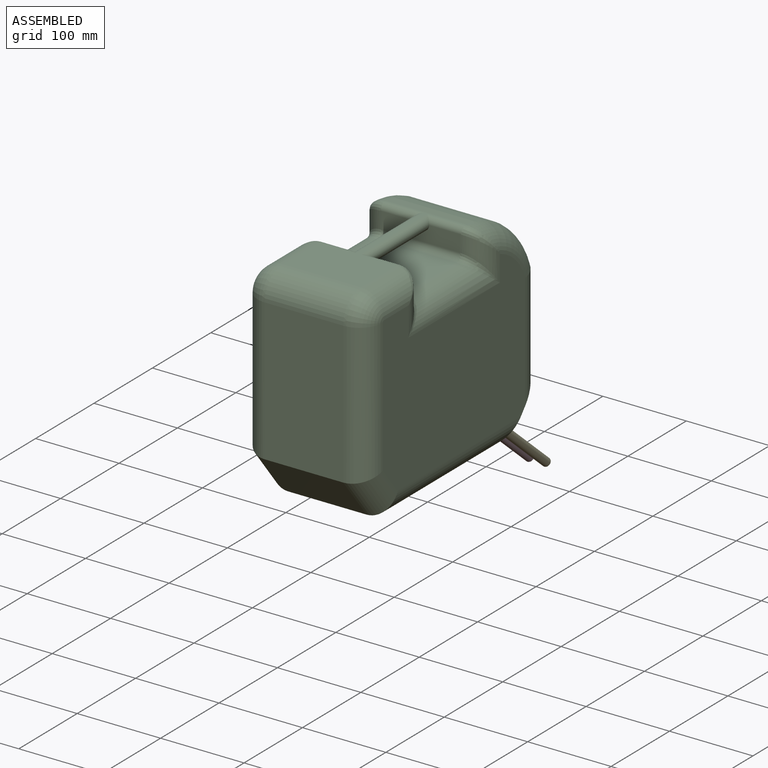
[diagram: assembled view]
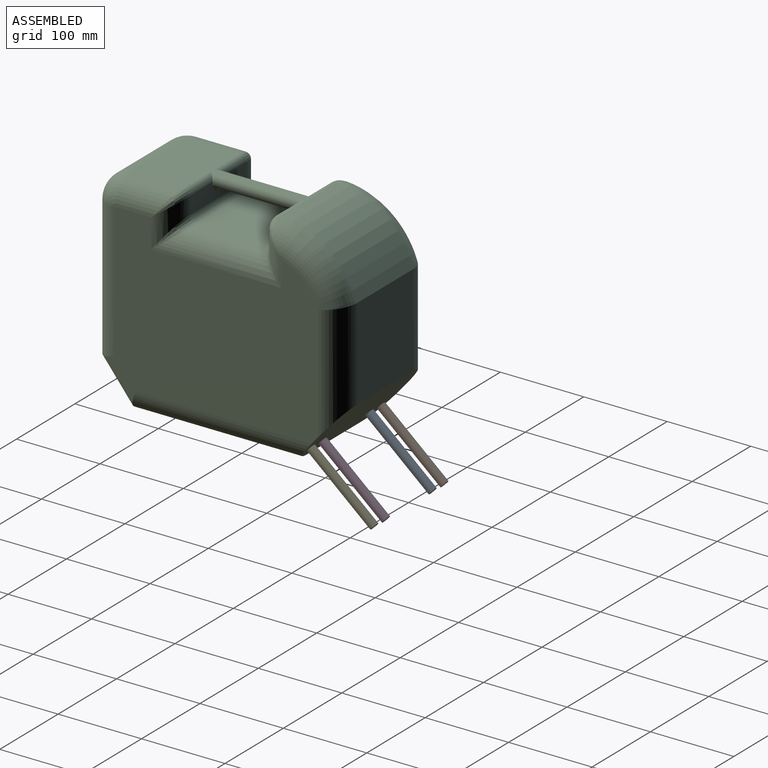
[diagram: assembled view, second angle]
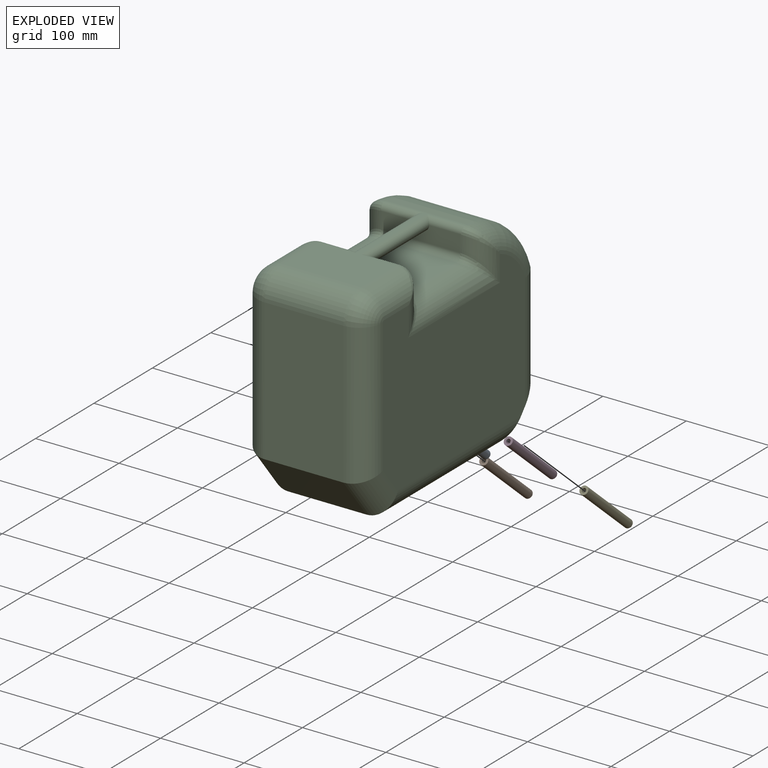
[diagram: exploded view]
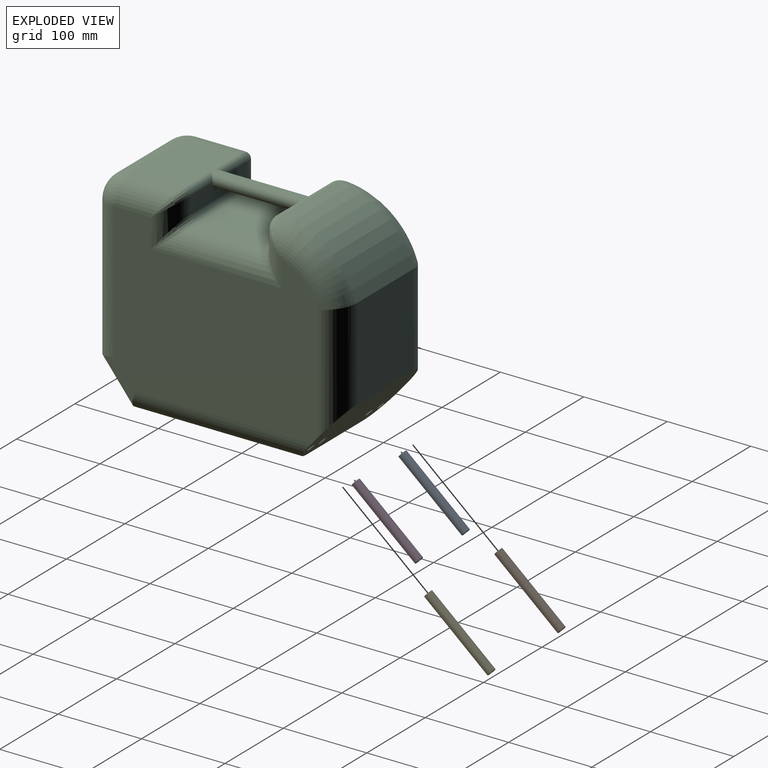
[diagram: exploded view, second angle]
ASSEMBLY  parts=5 mates=4
PART A: 4 faces, bbox 10x100x10 mm
  f0: cylinder r=2.5mm len=100mm, axis (0,1,0), area 1570.8mm2, adj f2,f3
  f1: cylinder r=5mm len=100mm, axis (0,1,0), area 3141.6mm2, adj f2,f3
  f2: plane 10x10mm, normal (0,-1,0), area 58.9mm2, adj f0,f1
  f3: plane 10x10mm, normal (0,1,0), area 58.9mm2, adj f0,f1
PART B: same geometry as A
PART C: 114 faces, bbox 163.7x321.6x272 mm
  f0: plane 94x20mm, normal (0,1,0), area 1815.6mm2, adj f14,f23,f33,f38,f45,f46,f51,f52
  f1: cylinder r=27.5mm len=94mm, axis (-1,0,0), area 4060.3mm2, adj f2,f10,f22,f32
  f2: plane 169.12x94mm, normal (0,1,0), area 15896.7mm2, adj f1,f3,f20,f30
  f3: plane 94x48.38mm, normal (0,0.78,0.62), area 5823.3mm2, adj f2,f4,f18,f28
  f4: plane 197.65x94mm, normal (0,0,1), area 18578mm2, adj f3,f5,f17,f27
  f5: plane 157.52x80.94mm, normal (0,-0.76,0.65), area 11956.8mm2, adj f4,f6,f11,f12,f17,f19,f27,f29
  f6: plane 108.69x94mm, normal (0,-1,0), area 10216.4mm2, adj f5,f7,f19,f29
  f7: cylinder r=97.5mm len=94mm, axis (-1,0,0), area 11153mm2, adj f6,f10,f21,f31
  f8: plane 94x85mm, normal (0,0,-1), area 7989.6mm2, adj f25,f35,f38,f41
  f9: plane 95.69x21.69mm, normal (0,-1,0), area 1728.1mm2, adj f13,f15,f16,f26,f36,f41,f44,f47
  f10: plane 179.69x98mm, normal (0,0,-1), area 6602.9mm2, adj f1,f7,f21,f24,f31,f34,f43,f45
  f11: plane 243.99x193.99mm, normal (-1,0,0), area 40565.6mm2, adj f5,f17,f18,f19,f20,f21,f22,f23
  f12: plane 244x194mm, normal (1,0,0), area 40569.8mm2, adj f5,f27,f28,f29,f30,f31,f32,f33
  f13: cylinder r=7.5mm len=7.5mm, axis (-1,0,0), area 58.9mm2, adj f9,f14,f44,f49
  f14: plane 97.5x5mm, normal (0,0,1), area 487.5mm2, adj f0,f13,f46,f51
  f15: plane 7.5x2.5mm, normal (-1,0,0), area 6mm2, adj f9,f44,f46
  f16: plane 7.5x2.5mm, normal (1,0,0), area 6mm2, adj f9,f49,f51
  f17: cylinder r=25.5mm len=219.51mm, axis (0,-1,0), area 8110.8mm2, adj f4,f5,f11,f18
  f18: cylinder r=25.5mm len=64.31mm, axis (0,-0.62,0.78), area 2057.2mm2, adj f3,f11,f17,f20
  f19: cylinder r=25.5mm len=138.45mm, axis (0,0,-1), area 4865.2mm2, adj f5,f6,f11,f21
  f20: cylinder r=25.5mm len=169.12mm, axis (0,0,1), area 6596.4mm2, adj f2,f11,f18,f22
  f21: torus R=72mm, axis (1,0,0), area 3979.8mm2, adj f7,f10,f11,f19,f43
  f22: torus R=2mm, axis (1,0,0), area 1147.4mm2, adj f1,f11,f20,f24
  f23: cylinder r=25.5mm len=55.56mm, axis (0,0,1), area 985.5mm2, adj f0,f11,f39,f43,f45
  f24: cylinder r=25.5mm len=62.5mm, axis (0,1,0), area 2093.2mm2, adj f10,f11,f22,f48
  f25: cylinder r=25.5mm len=156.01mm, axis (0,1,0), area 4827.8mm2, adj f8,f11,f39,f42
  f26: cylinder r=25.5mm len=55.51mm, axis (0,0,-1), area 1101.7mm2, adj f9,f11,f42,f48
  f27: cylinder r=25.5mm len=219.51mm, axis (0,1,0), area 8109.2mm2, adj f4,f5,f12,f28
  f28: cylinder r=25.5mm len=64.31mm, axis (0,0.62,-0.78), area 2056.9mm2, adj f3,f12,f27,f30
  f29: cylinder r=25.5mm len=138.44mm, axis (0,0,1), area 4864.1mm2, adj f5,f6,f12,f31
  f30: cylinder r=25.5mm len=169.12mm, axis (0,0,-1), area 6595.1mm2, adj f2,f12,f28,f32
  f31: torus R=72mm, axis (1,0,0), area 3979.2mm2, adj f7,f10,f12,f29,f50
  f32: torus R=2mm, axis (1,0,0), area 1147.2mm2, adj f1,f12,f30,f34
  f33: cylinder r=25.5mm len=55.56mm, axis (0,0,-1), area 985.4mm2, adj f0,f12,f37,f50,f52
  f34: cylinder r=25.5mm len=62.5mm, axis (0,-1,0), area 2092.9mm2, adj f10,f12,f32,f54
  f35: cylinder r=25.5mm len=156mm, axis (0,-1,0), area 4826.7mm2, adj f8,f12,f37,f40
  f36: cylinder r=25.5mm len=55.5mm, axis (0,0,1), area 1101.5mm2, adj f9,f12,f40,f54
  f37: bspline ~35.5x35.5mm, area 272.2mm2, adj f33,f35,f38
  f38: cylinder r=10mm len=94mm, axis (1,0,0), area 1476.5mm2, adj f0,f8,f37,f39
  f39: bspline ~35.51x35.51mm, area 272.2mm2, adj f23,f25,f38
  f40: bspline ~35.5x35.5mm, area 272.2mm2, adj f35,f36,f41
  f41: cylinder r=10mm len=94mm, axis (1,0,0), area 1476.5mm2, adj f8,f9,f40,f42
  f42: bspline ~35.51x35.51mm, area 272.2mm2, adj f25,f26,f41
  f43: bspline ~29.55x26.8mm, area 224.4mm2, adj f10,f21,f23,f45
  f44: torus R=12.5mm, axis (1,0,0), area 77.8mm2, adj f9,f13,f15,f46
  f45: cylinder r=5mm len=46.19mm, axis (1,0,0), area 333.7mm2, adj f0,f10,f23,f43,f46
  f46: cylinder r=5mm len=115mm, axis (0,-1,0), area 1629.7mm2, adj f0,f10,f14,f15,f44,f45,f47
  f47: cylinder r=5mm len=44.5mm, axis (1,0,0), area 329.8mm2, adj f9,f10,f46,f48
  f48: bspline ~29.47x25.51mm, area 137.7mm2, adj f24,f26,f47
  f49: torus R=12.5mm, axis (1,0,0), area 77.8mm2, adj f9,f13,f16,f51
  f50: bspline ~29.54x26.79mm, area 224.3mm2, adj f10,f31,f33,f52
  f51: cylinder r=5mm len=115mm, axis (0,1,0), area 1629.7mm2, adj f0,f10,f14,f16,f49,f52,f53
  f52: cylinder r=5mm len=46.2mm, axis (1,0,0), area 333.8mm2, adj f0,f10,f33,f50,f51
  f53: cylinder r=5mm len=44.5mm, axis (1,0,0), area 329.9mm2, adj f9,f10,f51,f54
  f54: bspline ~26.5x25.5mm, area 137.7mm2, adj f34,f36,f53
  f55: cylinder r=5mm len=10mm, axis (0,0.76,-0.65), area 78.5mm2, adj f5,f64
  f56: cylinder r=5mm len=10mm, axis (0,0.76,-0.65), area 78.5mm2, adj f5,f64
  f57: cylinder r=5mm len=10mm, axis (0,0.76,-0.65), area 78.5mm2, adj f5,f64
  f58: cylinder r=5mm len=10mm, axis (0,0.76,-0.65), area 78.5mm2, adj f5,f64
  f59: plane 94x20mm, normal (0,-1,0), area 1754mm2, adj f73,f82,f92,f97,f104,f105,f110,f111
  f60: cylinder r=30mm len=94mm, axis (-1,0,0), area 4429.4mm2, adj f61,f69,f81,f91
  f61: plane 170x94mm, normal (0,-1,0), area 15979.2mm2, adj f60,f62,f79,f89
  f62: plane 94x50mm, normal (0,-0.78,-0.62), area 6018.6mm2, adj f61,f63,f77,f87
  f63: plane 200x94mm, normal (0,0,-1), area 18799mm2, adj f62,f64,f76,f86
  f64: plane 163.74x83.74mm, normal (0,0.76,-0.65), area 12554.7mm2, adj f55,f56,f57,f58,f63,f65,f70,f71
  f65: plane 110x94mm, normal (0,1,0), area 10339.5mm2, adj f64,f66,f78,f88
  f66: cylinder r=100mm len=94mm, axis (-1,0,0), area 11481.1mm2, adj f65,f69,f80,f90
  f67: plane 94x85mm, normal (0,0,1), area 7989.6mm2, adj f84,f94,f97,f100
  f68: plane 97.02x23.02mm, normal (0,1,0), area 1686.8mm2, adj f72,f74,f75,f85,f95,f100,f103,f106
  f69: plane 179.75x98.17mm, normal (0,0,1), area 6608.7mm2, adj f60,f66,f80,f83,f90,f93,f102,f104
  f70: plane 243.99x193.99mm, normal (1,0,0), area 40602.6mm2, adj f64,f76,f77,f78,f79,f80,f81,f82
  f71: plane 244x194mm, normal (-1,0,0), area 40606.9mm2, adj f64,f86,f87,f88,f89,f90,f91,f92
  f72: cylinder r=5mm len=5mm, axis (-1,0,0), area 39.3mm2, adj f68,f73,f103,f108
  f73: plane 95x5mm, normal (0,0,-1), area 475mm2, adj f59,f72,f105,f110
  f74: plane 5x1.04mm, normal (1,0,0), area 1.7mm2, adj f68,f103,f105
  f75: plane 5x1.04mm, normal (-1,0,0), area 1.7mm2, adj f68,f108,f110
  f76: cylinder r=28mm len=224mm, axis (0,-1,0), area 9029.9mm2, adj f63,f64,f70,f77
  f77: cylinder r=28mm len=67.49mm, axis (0,-0.62,0.78), area 2304.6mm2, adj f62,f70,f76,f79
  f78: cylinder r=28mm len=142.67mm, axis (0,0,-1), area 5455.4mm2, adj f64,f65,f70,f80
  f79: cylinder r=28mm len=170mm, axis (0,0,1), area 7262.2mm2, adj f61,f70,f77,f81
  f80: torus R=72mm, axis (1,0,0), area 4462.9mm2, adj f66,f69,f70,f78,f102
  f81: torus R=2mm, axis (1,0,0), area 1369.8mm2, adj f60,f70,f79,f83
  f82: cylinder r=28mm len=55.56mm, axis (0,0,1), area 1082.1mm2, adj f59,f70,f98,f102,f104
  f83: cylinder r=28mm len=62.5mm, axis (0,1,0), area 2298.4mm2, adj f69,f70,f81,f107
  f84: cylinder r=28mm len=156.01mm, axis (0,1,0), area 5301mm2, adj f67,f70,f98,f101
  f85: cylinder r=28mm len=55.51mm, axis (0,0,-1), area 1209.7mm2, adj f68,f70,f101,f107
  f86: cylinder r=28mm len=224mm, axis (0,1,0), area 9028.3mm2, adj f63,f64,f71,f87
  f87: cylinder r=28mm len=67.49mm, axis (0,0.62,-0.78), area 2304.3mm2, adj f62,f71,f86,f89
  f88: cylinder r=28mm len=142.67mm, axis (0,0,1), area 5454.3mm2, adj f64,f65,f71,f90
  f89: cylinder r=28mm len=170mm, axis (0,0,-1), area 7261mm2, adj f61,f71,f87,f91
  f90: torus R=72mm, axis (1,0,0), area 4462.3mm2, adj f66,f69,f71,f88,f109
  f91: torus R=2mm, axis (1,0,0), area 1369.7mm2, adj f60,f71,f89,f93
  f92: cylinder r=28mm len=55.56mm, axis (0,0,-1), area 1082mm2, adj f59,f71,f96,f109,f111
  f93: cylinder r=28mm len=62.5mm, axis (0,-1,0), area 2298.1mm2, adj f69,f71,f91,f113
  f94: cylinder r=28mm len=156mm, axis (0,-1,0), area 5299.9mm2, adj f67,f71,f96,f99
  f95: cylinder r=28mm len=55.5mm, axis (0,0,1), area 1209.5mm2, adj f68,f71,f99,f113
  f96: bspline ~35.5x35.5mm, area 225.8mm2, adj f92,f94,f97
  f97: cylinder r=7.5mm len=94mm, axis (1,0,0), area 1107.4mm2, adj f59,f67,f96,f98
  f98: bspline ~35.51x35.51mm, area 224.7mm2, adj f82,f84,f97
  f99: bspline ~35.5x35.5mm, area 224.7mm2, adj f94,f95,f100
  f100: cylinder r=7.5mm len=94mm, axis (1,0,0), area 1107.4mm2, adj f67,f68,f99,f101
  f101: bspline ~35.51x35.51mm, area 224.7mm2, adj f84,f85,f100
  f102: bspline ~32.13x29.51mm, area 366.8mm2, adj f69,f80,f82,f104
  f103: torus R=12.5mm, axis (1,0,0), area 81.3mm2, adj f68,f72,f74,f105
  f104: cylinder r=7.5mm len=46.28mm, axis (1,0,0), area 482.7mm2, adj f59,f69,f82,f102,f105
  f105: cylinder r=7.5mm len=115mm, axis (0,-1,0), area 2385.6mm2, adj f59,f69,f73,f74,f103,f104,f106
  f106: cylinder r=7.5mm len=44.5mm, axis (1,0,0), area 480mm2, adj f68,f69,f105,f107
  f107: bspline ~29.17x28.01mm, area 227.1mm2, adj f83,f85,f106
  f108: torus R=12.5mm, axis (1,0,0), area 81.3mm2, adj f68,f72,f75,f110
  f109: bspline ~32.12x29.51mm, area 366.8mm2, adj f69,f90,f92,f111
  f110: cylinder r=7.5mm len=115mm, axis (0,1,0), area 2385.6mm2, adj f59,f69,f73,f75,f108,f111,f112
  f111: cylinder r=7.5mm len=46.28mm, axis (1,0,0), area 482.8mm2, adj f59,f69,f92,f109,f110
  f112: cylinder r=7.5mm len=44.5mm, axis (1,0,0), area 480.1mm2, adj f68,f69,f110,f113
  f113: bspline ~29.16x28mm, area 229.6mm2, adj f93,f95,f112
PART D: same geometry as A
PART E: same geometry as A
PLACE A rot(axis=(-1,0,0),40.6deg) t=(-77.33,184.98,-134.71)mm
PLACE B rot(axis=(-1,0,0),40.6deg) t=(-97.33,184.98,-134.71)mm
PLACE C t=(-112.32,6.03,40.19)mm fixed
PLACE D rot(axis=(-1,0,0),40.6deg) t=(2.67,184.98,-134.71)mm
PLACE E rot(axis=(-1,0,0),40.6deg) t=(22.67,184.98,-134.71)mm
MATE revolute B.f1 <-> C.f58  axis (0,-0.76,0.65) through (-97.33,109.05,-69.63)mm
MATE revolute A.f1 <-> C.f57  axis (0,-0.76,0.65) through (-77.33,109.05,-69.63)mm
MATE revolute D.f1 <-> C.f55  axis (0,-0.76,0.65) through (2.67,109.05,-69.63)mm
MATE revolute E.f1 <-> C.f56  axis (0,-0.76,0.65) through (22.67,109.05,-69.63)mm
